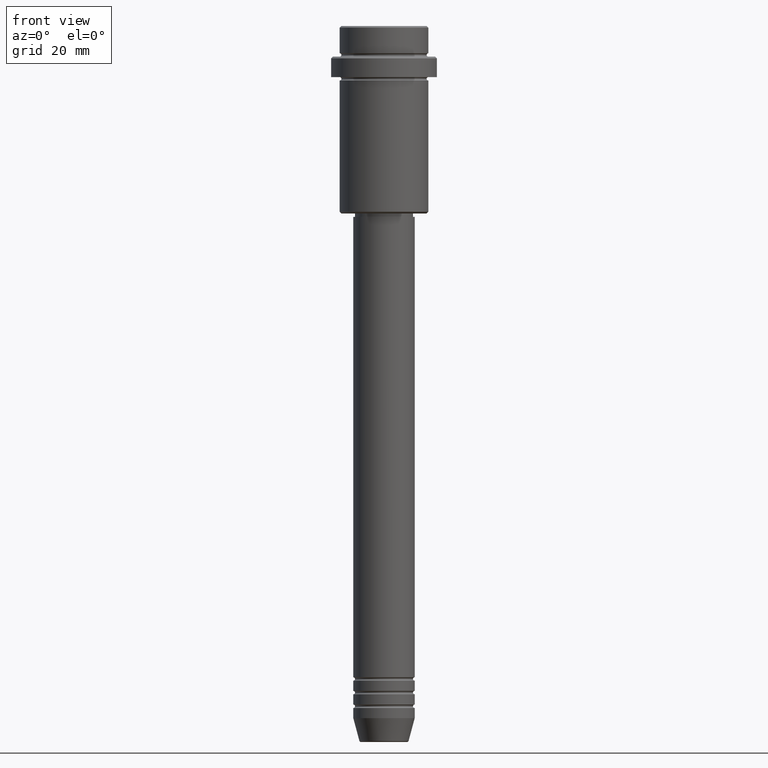
[diagram: clean part render]
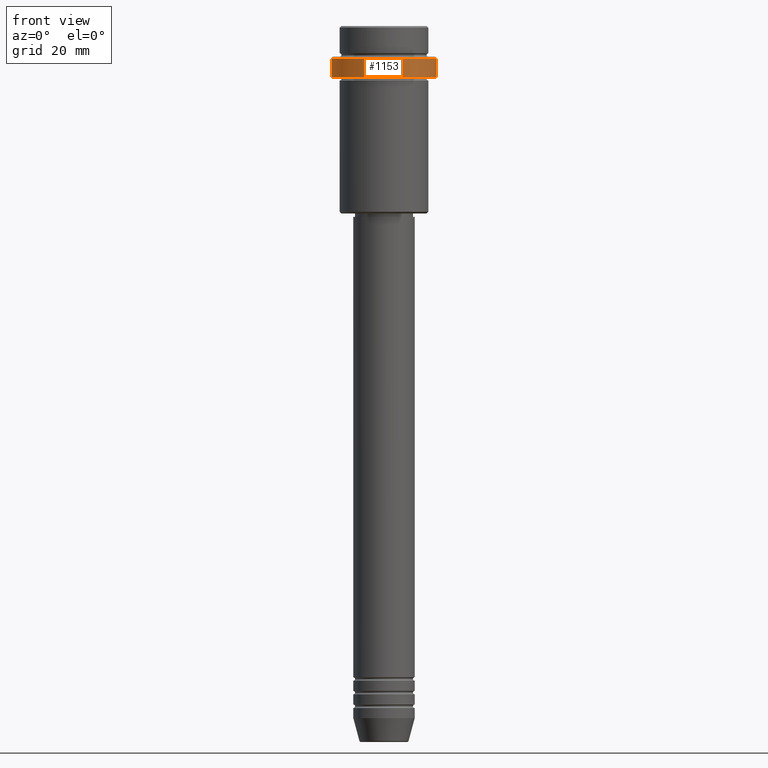
[diagram: same view with one face highlighted and labeled with its STEP entity id]
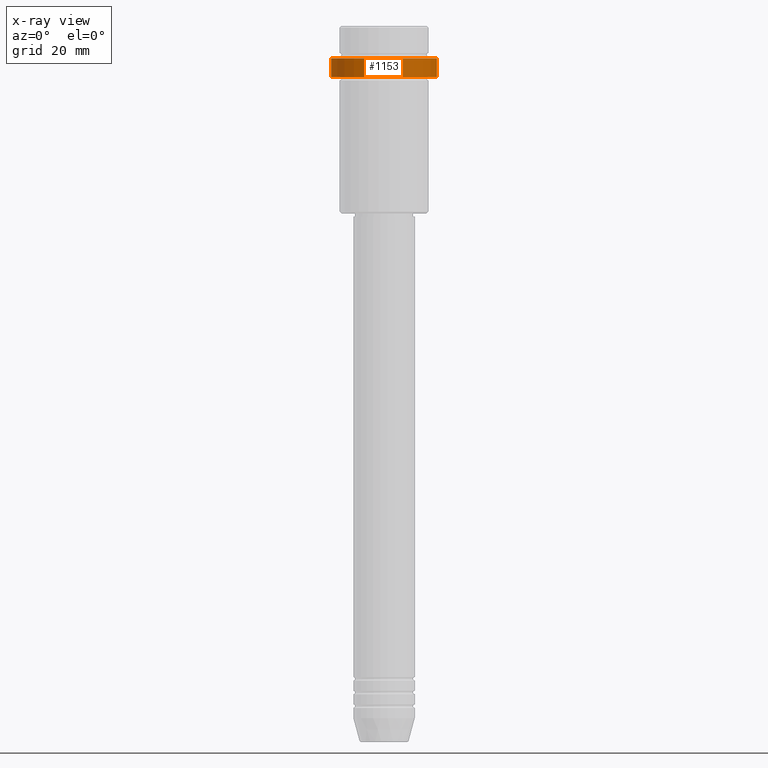
[diagram: x-ray of the same camera — body ghosted, the highlighted face saturated]
A machine part, front view. The second image highlights one B-rep face of the part: STEP entity #1153.
The next image is the same camera in x-ray: the body ghosted, the highlighted face saturated — about 0% of this face is hidden behind the body in this view.
In plain terms, the highlighted cylindrical surface (partial cylindrical patch) has radius 15.5 mm, axis along (-0, -0, 1).
Its self-contained STEP definition (entity closure, byte-faithful):
#58 = AXIS2_PLACEMENT_3D ( 'NONE', #213, #875, #100 ) ;
#76 = DIRECTION ( 'NONE',  ( -0.000000000000000000, -0.000000000000000000, 1.000000000000000000 ) ) ;
#81 = CIRCLE ( 'NONE', #794, 15.50000000000000000 ) ;
#85 = CARTESIAN_POINT ( 'NONE',  ( 0.000000000000000000, 0.000000000000000000, 0.000000000000000000 ) ) ;
#99 = DIRECTION ( 'NONE',  ( 1.000000000000000000, 0.000000000000000000, 0.000000000000000000 ) ) ;
#100 = DIRECTION ( 'NONE',  ( 1.000000000000000000, 0.000000000000000000, 0.000000000000000000 ) ) ;
#160 = EDGE_CURVE ( 'NONE', #1196, #928, #81, .T. ) ;
#169 = EDGE_CURVE ( 'NONE', #696, #562, #751, .T. ) ;
#212 = CYLINDRICAL_SURFACE ( 'NONE', #1297, 15.50000000000000000 ) ;
#213 = CARTESIAN_POINT ( 'NONE',  ( 0.000000000000000000, 0.000000000000000000, -9.500000000000014211 ) ) ;
#227 = CARTESIAN_POINT ( 'NONE',  ( 15.50000000000000000, 0.000000000000000000, -9.500000000000014211 ) ) ;
#375 = LINE ( 'NONE', #965, #1295 ) ;
#408 = CARTESIAN_POINT ( 'NONE',  ( 15.50000000000000000, 0.000000000000000000, 0.000000000000000000 ) ) ;
#529 = DIRECTION ( 'NONE',  ( -0.000000000000000000, -0.000000000000000000, 1.000000000000000000 ) ) ;
#562 = VERTEX_POINT ( 'NONE', #1160 ) ;
#580 = ORIENTED_EDGE ( 'NONE', *, *, #169, .T. ) ;
#596 = EDGE_CURVE ( 'NONE', #928, #696, #1069, .T. ) ;
#631 = ORIENTED_EDGE ( 'NONE', *, *, #160, .T. ) ;
#655 = DIRECTION ( 'NONE',  ( 1.000000000000000000, 0.000000000000000000, 0.000000000000000000 ) ) ;
#696 = VERTEX_POINT ( 'NONE', #227 ) ;
#751 = CIRCLE ( 'NONE', #58, 15.50000000000000000 ) ;
#794 = AXIS2_PLACEMENT_3D ( 'NONE', #993, #1413, #655 ) ;
#875 = DIRECTION ( 'NONE',  ( 0.000000000000000000, 0.000000000000000000, -1.000000000000000000 ) ) ;
#916 = VECTOR ( 'NONE', #76, 1000.000000000000000 ) ;
#928 = VERTEX_POINT ( 'NONE', #1174 ) ;
#965 = CARTESIAN_POINT ( 'NONE',  ( -15.50000000000000000, 1.898202538678397557E-15, 0.000000000000000000 ) ) ;
#973 = CARTESIAN_POINT ( 'NONE',  ( -15.50000000000000000, 1.898202538678397557E-15, -15.00000000000000178 ) ) ;
#993 = CARTESIAN_POINT ( 'NONE',  ( 0.000000000000000000, 0.000000000000000000, -15.00000000000000178 ) ) ;
#1058 = EDGE_CURVE ( 'NONE', #1196, #562, #375, .T. ) ;
#1069 = LINE ( 'NONE', #408, #916 ) ;
#1073 = ORIENTED_EDGE ( 'NONE', *, *, #1058, .F. ) ;
#1153 = ADVANCED_FACE ( 'NONE', ( #1192 ), #212, .T. ) ;
#1160 = CARTESIAN_POINT ( 'NONE',  ( -15.50000000000000000, 1.898202538678397557E-15, -9.500000000000014211 ) ) ;
#1174 = CARTESIAN_POINT ( 'NONE',  ( 15.50000000000000000, 0.000000000000000000, -15.00000000000000178 ) ) ;
#1192 = FACE_OUTER_BOUND ( 'NONE', #1290, .T. ) ;
#1196 = VERTEX_POINT ( 'NONE', #973 ) ;
#1290 = EDGE_LOOP ( 'NONE', ( #1073, #631, #1397, #580 ) ) ;
#1295 = VECTOR ( 'NONE', #1368, 1000.000000000000000 ) ;
#1297 = AXIS2_PLACEMENT_3D ( 'NONE', #85, #529, #99 ) ;
#1368 = DIRECTION ( 'NONE',  ( -0.000000000000000000, -0.000000000000000000, 1.000000000000000000 ) ) ;
#1397 = ORIENTED_EDGE ( 'NONE', *, *, #596, .T. ) ;
#1413 = DIRECTION ( 'NONE',  ( -0.000000000000000000, -0.000000000000000000, 1.000000000000000000 ) ) ;